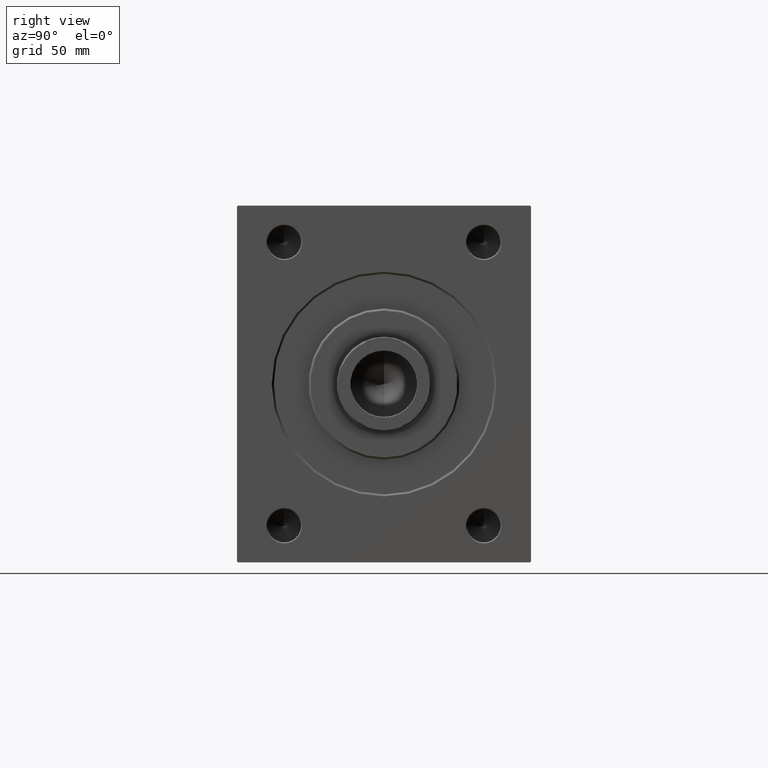
[diagram: clean part render]
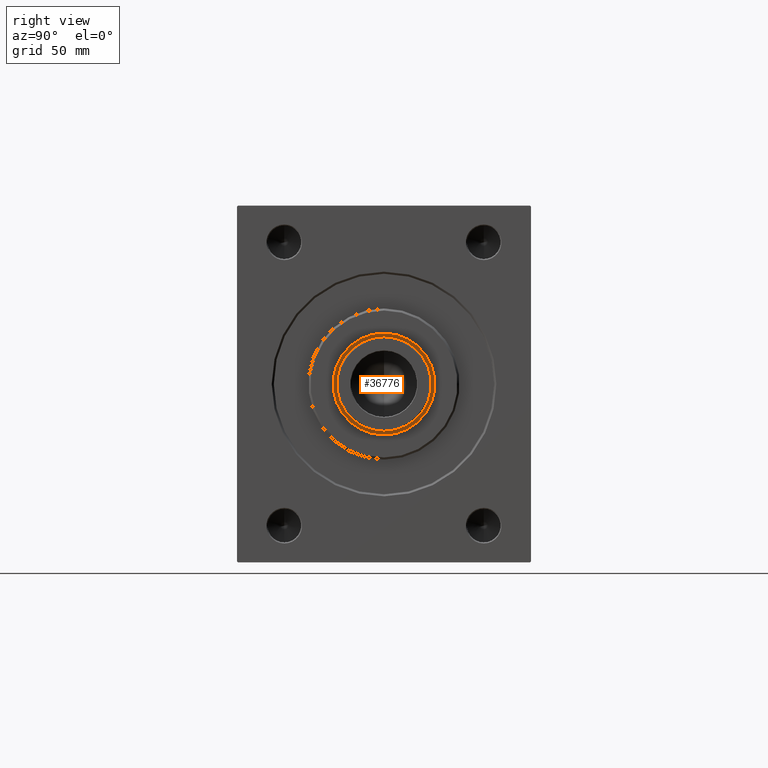
[diagram: same view with one face highlighted and labeled with its STEP entity id]
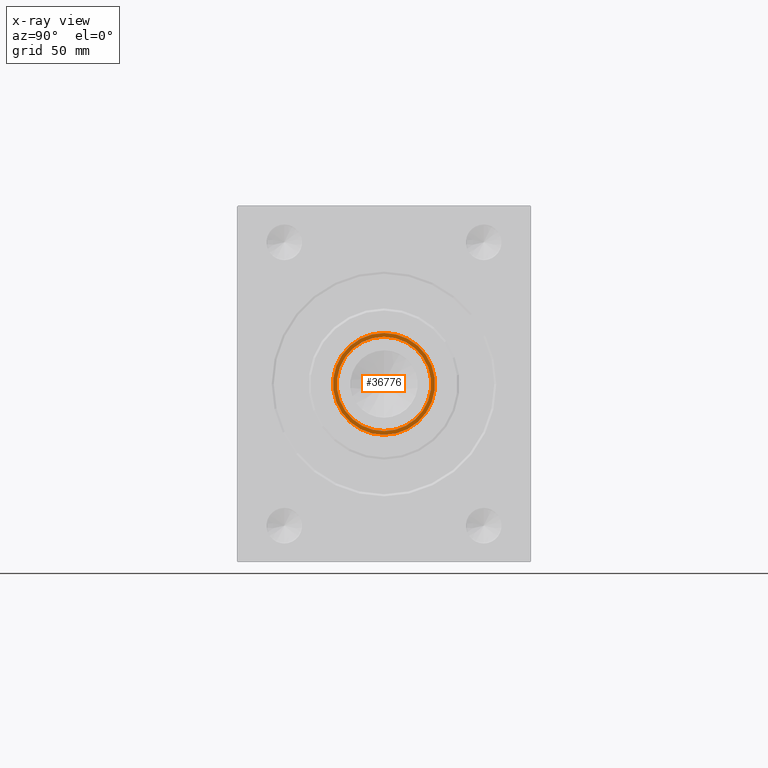
[diagram: x-ray of the same camera — body ghosted, the highlighted face saturated]
A machine part, right view. The second image highlights one B-rep face of the part: STEP entity #36776.
The next image is the same camera in x-ray: the body ghosted, the highlighted face saturated — about 0% of this face is hidden behind the body in this view.
In plain terms, the highlighted planar face has unit normal (1, 0, 0).
Its self-contained STEP definition (entity closure, byte-faithful):
#198 = CARTESIAN_POINT ( 'NONE',  ( 1.500000000000001332, 0.000000000000000000, -22.50000000000000355 ) ) ;
#545 = AXIS2_PLACEMENT_3D ( 'NONE', #10961, #17776, #38732 ) ;
#2638 = ORIENTED_EDGE ( 'NONE', *, *, #31265, .T. ) ;
#2817 = DIRECTION ( 'NONE',  ( 1.000000000000000000, 0.000000000000000000, 0.000000000000000000 ) ) ;
#2846 = ORIENTED_EDGE ( 'NONE', *, *, #39888, .F. ) ;
#3361 = CARTESIAN_POINT ( 'NONE',  ( 1.500000000000001332, 0.000000000000000000, 0.000000000000000000 ) ) ;
#5899 = DIRECTION ( 'NONE',  ( 1.000000000000000000, 0.000000000000000000, 0.000000000000000000 ) ) ;
#8553 = VERTEX_POINT ( 'NONE', #14235 ) ;
#10961 = CARTESIAN_POINT ( 'NONE',  ( 1.500000000000000000, 0.000000000000000000, 0.000000000000000000 ) ) ;
#12152 = CIRCLE ( 'NONE', #545, 24.25000000000000000 ) ;
#12635 = ORIENTED_EDGE ( 'NONE', *, *, #44157, .F. ) ;
#13779 = AXIS2_PLACEMENT_3D ( 'NONE', #3361, #34719, #23787 ) ;
#14227 = VERTEX_POINT ( 'NONE', #42472 ) ;
#14235 = CARTESIAN_POINT ( 'NONE',  ( 1.500000000000000000, 2.969768487932331287E-15, -24.25000000000000000 ) ) ;
#16631 = DIRECTION ( 'NONE',  ( 1.000000000000000000, 0.000000000000000000, 0.000000000000000000 ) ) ;
#16983 = PLANE ( 'NONE',  #40601 ) ;
#17776 = DIRECTION ( 'NONE',  ( 1.000000000000000000, 0.000000000000000000, 0.000000000000000000 ) ) ;
#20823 = CIRCLE ( 'NONE', #39740, 24.25000000000000000 ) ;
#23014 = CARTESIAN_POINT ( 'NONE',  ( 1.500000000000001332, 0.000000000000000000, 0.000000000000000000 ) ) ;
#23098 = VERTEX_POINT ( 'NONE', #198 ) ;
#23469 = CARTESIAN_POINT ( 'NONE',  ( 1.500000000000000000, 0.000000000000000000, 0.000000000000000000 ) ) ;
#23787 = DIRECTION ( 'NONE',  ( 0.000000000000000000, 0.000000000000000000, -1.000000000000000000 ) ) ;
#23832 = CIRCLE ( 'NONE', #38387, 22.50000000000000355 ) ;
#30846 = ORIENTED_EDGE ( 'NONE', *, *, #32282, .T. ) ;
#31265 = EDGE_CURVE ( 'NONE', #32069, #8553, #20823, .T. ) ;
#32069 = VERTEX_POINT ( 'NONE', #41568 ) ;
#32282 = EDGE_CURVE ( 'NONE', #8553, #32069, #12152, .T. ) ;
#32867 = EDGE_LOOP ( 'NONE', ( #2638, #30846 ) ) ;
#33629 = DIRECTION ( 'NONE',  ( 0.000000000000000000, 0.000000000000000000, -1.000000000000000000 ) ) ;
#33731 = DIRECTION ( 'NONE',  ( 0.000000000000000000, 0.000000000000000000, -1.000000000000000000 ) ) ;
#34296 = FACE_OUTER_BOUND ( 'NONE', #32867, .T. ) ;
#34719 = DIRECTION ( 'NONE',  ( 1.000000000000000000, 0.000000000000000000, 0.000000000000000000 ) ) ;
#36776 = ADVANCED_FACE ( 'NONE', ( #37719, #34296 ), #16983, .T. ) ;
#37719 = FACE_BOUND ( 'NONE', #42687, .T. ) ;
#38387 = AXIS2_PLACEMENT_3D ( 'NONE', #23014, #16631, #43759 ) ;
#38732 = DIRECTION ( 'NONE',  ( 0.000000000000000000, 0.000000000000000000, -1.000000000000000000 ) ) ;
#39740 = AXIS2_PLACEMENT_3D ( 'NONE', #23469, #2817, #33731 ) ;
#39888 = EDGE_CURVE ( 'NONE', #23098, #14227, #23832, .T. ) ;
#40601 = AXIS2_PLACEMENT_3D ( 'NONE', #41352, #5899, #33629 ) ;
#41352 = CARTESIAN_POINT ( 'NONE',  ( 1.500000000000000000, 0.000000000000000000, 0.000000000000000000 ) ) ;
#41568 = CARTESIAN_POINT ( 'NONE',  ( 1.500000000000000000, 0.000000000000000000, 24.25000000000000000 ) ) ;
#42472 = CARTESIAN_POINT ( 'NONE',  ( 1.500000000000001332, 2.755455298081545172E-15, 22.50000000000000355 ) ) ;
#42687 = EDGE_LOOP ( 'NONE', ( #2846, #12635 ) ) ;
#43602 = CIRCLE ( 'NONE', #13779, 22.50000000000000355 ) ;
#43759 = DIRECTION ( 'NONE',  ( 0.000000000000000000, 0.000000000000000000, -1.000000000000000000 ) ) ;
#44157 = EDGE_CURVE ( 'NONE', #14227, #23098, #43602, .T. ) ;